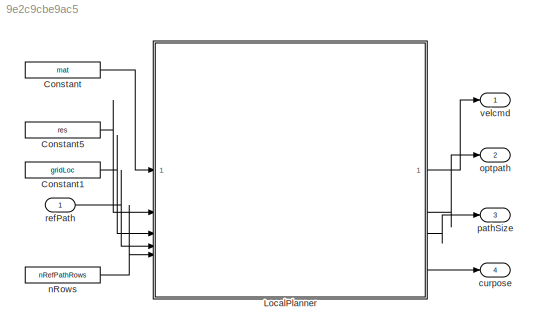
MODEL slx_9e2c9cbe9ac5
KIND model
CONFIG AbsTol = auto
CONFIG EnableMultiTasking = off
CONFIG FixedStep = auto
CONFIG MaxStep = auto
CONFIG MinStep = auto
CONFIG RelTol = 1e-3
CONFIG SampleTimeConstraint = Unconstrained
CONFIG SolverName = VariableStepAuto
CONFIG StartTime = 0.0
CONFIG StopTime = tsReplan
BLOCK [Constant] Constant
  Value = mat
BLOCK [Constant] Constant1
  Value = gridLoc
BLOCK [Constant] Constant5
  Value = res
BLOCK [ModelReference] LocalPlanner
  ModelNameDialog = LocalPlanner
  ModelReferenceVersion = 2.0
BLOCK [Outport] curpose
  Port = 4
BLOCK [Constant] nRows
  Value = nRefPathRows
BLOCK [Outport] optpath
  Port = 2
BLOCK [Outport] pathSize
  Port = 3
BLOCK [Inport] refPath
  Interpolate = off
  PortDimensions = [1e3 3]
  VarSizeSig = No
BLOCK [Outport] velcmd
LINE Constant1:1 -> LocalPlanner:3
LINE Constant5:1 -> LocalPlanner:2
LINE Constant:1 -> LocalPlanner:1
LINE LocalPlanner:1 -> velcmd:1
LINE LocalPlanner:2 -> optpath:1
LINE LocalPlanner:3 -> pathSize:1
LINE LocalPlanner:4 -> curpose:1
LINE nRows:1 -> LocalPlanner:5
LINE refPath:1 -> LocalPlanner:4
